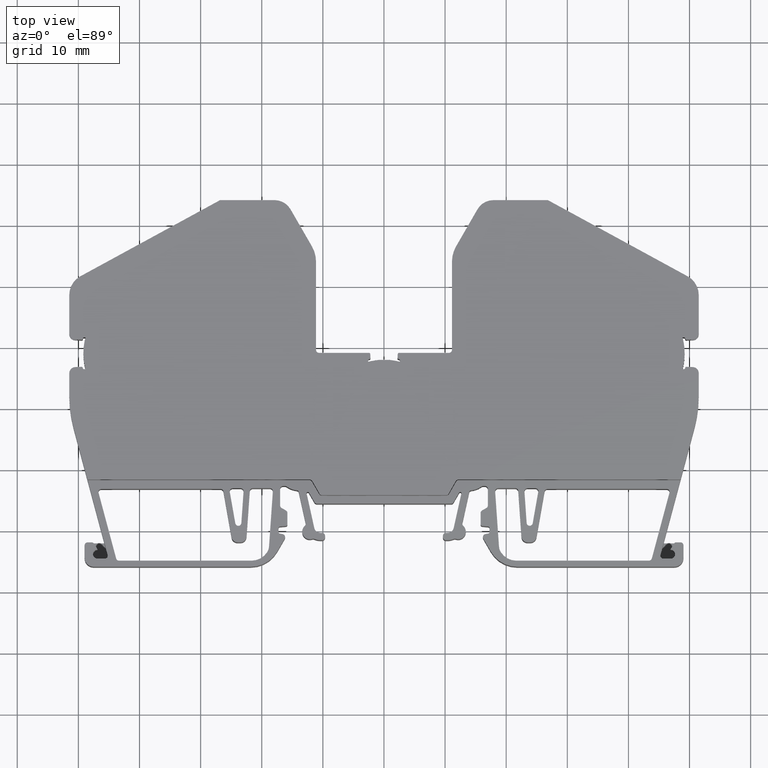
[diagram: clean part render]
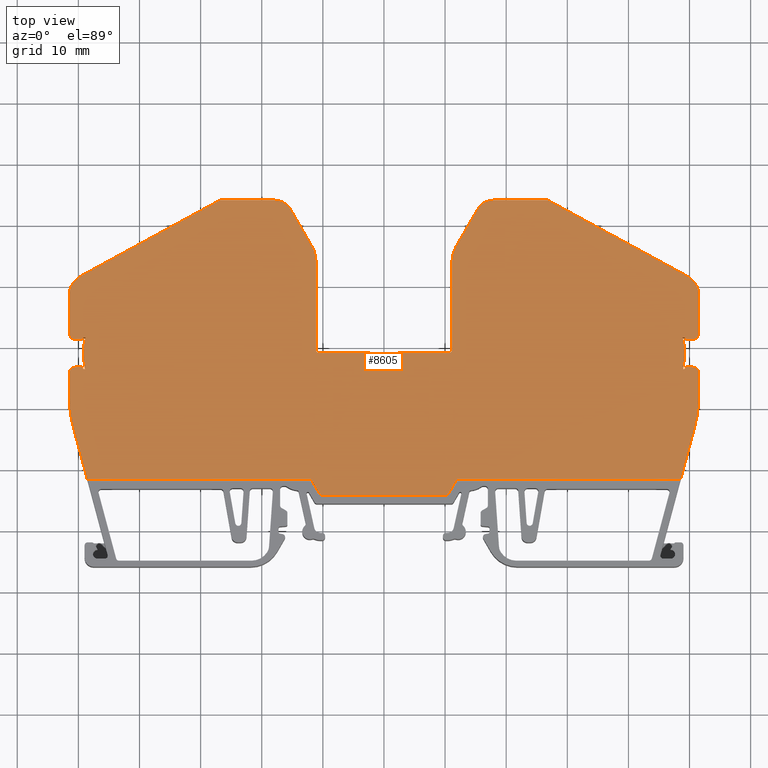
[diagram: same view with one face highlighted and labeled with its STEP entity id]
A machine part, top view. The second image highlights one B-rep face of the part: STEP entity #8605.
In plain terms, the highlighted planar face has unit normal (0, 0, 1).
Its self-contained STEP definition (entity closure, byte-faithful):
#4 = CARTESIAN_POINT ( 'NONE',  ( 1298.507053994932000, 431.6199358778930000, 10.60000000000000000 ) ) ;
#5 = DIRECTION ( 'NONE',  ( -1.000000000000000000, 0.0000000000000000000, 0.0000000000000000000 ) ) ;
#6 = LINE ( 'NONE', #4, #11837 ) ;
#20 = LINE ( 'NONE', #28, #11854 ) ;
#28 = CARTESIAN_POINT ( 'NONE',  ( 1298.507068478170600, 426.4082234672580400, 10.60000000000000000 ) ) ;
#48 = CARTESIAN_POINT ( 'NONE',  ( 1298.266889815361500, 427.5719810963045100, 10.60000000000000000 ) ) ;
#52 = DIRECTION ( 'NONE',  ( -0.9999999999944205700, 3.340482959311863300E-006, 0.0000000000000000000 ) ) ;
#61 = DIRECTION ( 'NONE',  ( -0.9990477948722859000, -0.04362915952459974600, 0.0000000000000000000 ) ) ;
#73 = LINE ( 'NONE', #48, #11850 ) ;
#79 = CARTESIAN_POINT ( 'NONE',  ( 1279.507057439684100, 425.7517721646530000, 10.60000000000000000 ) ) ;
#86 = CARTESIAN_POINT ( 'NONE',  ( 1280.523908026020100, 426.5969413982720100, 10.60000000000000000 ) ) ;
#93 = DIRECTION ( 'NONE',  ( 1.000000000000000000, 0.0000000000000000000, 0.0000000000000000000 ) ) ;
#94 = DIRECTION ( 'NONE',  ( 1.000000000000000000, 0.0000000000000000000, 0.0000000000000000000 ) ) ;
#98 = DIRECTION ( 'NONE',  ( 0.0000000000000000000, 0.0000000000000000000, 1.000000000000000000 ) ) ;
#102 = DIRECTION ( 'NONE',  ( 0.0000000000000000000, 0.0000000000000000000, 1.000000000000000000 ) ) ;
#115 = DIRECTION ( 'NONE',  ( 0.0000000000000000000, 0.0000000000000000000, 1.000000000000000000 ) ) ;
#118 = CARTESIAN_POINT ( 'NONE',  ( 1280.923749281592100, 431.4199358778929500, 10.60000000000000000 ) ) ;
#122 = DIRECTION ( 'NONE',  ( 1.000000000000000000, 0.0000000000000000000, 0.0000000000000000000 ) ) ;
#176 = DIRECTION ( 'NONE',  ( -0.0000000000000000000, -0.0000000000000000000, -1.000000000000000000 ) ) ;
#177 = LINE ( 'NONE', #189, #11370 ) ;
#186 = DIRECTION ( 'NONE',  ( -0.0000000000000000000, -0.0000000000000000000, -1.000000000000000000 ) ) ;
#189 = CARTESIAN_POINT ( 'NONE',  ( 1334.272179843406100, 428.8838811801180100, 10.60000000000000000 ) ) ;
#194 = CARTESIAN_POINT ( 'NONE',  ( 1280.923747103711800, 426.6082822040444900, 10.60000000000000000 ) ) ;
#202 = DIRECTION ( 'NONE',  ( 0.9990478125527956200, -0.04362875466334083900, 0.0000000000000000000 ) ) ;
#203 = CARTESIAN_POINT ( 'NONE',  ( 1290.820816291698100, 429.0141127513439900, 10.60000000000000000 ) ) ;
#209 = DIRECTION ( 'NONE',  ( 1.000000000000000000, 0.0000000000000000000, 0.0000000000000000000 ) ) ;
#212 = DIRECTION ( 'NONE',  ( 1.000000000000000000, 2.220446049250360400E-014, 0.0000000000000000000 ) ) ;
#216 = CARTESIAN_POINT ( 'NONE',  ( 1312.111076361960200, 451.0739963311459600, 10.59999999999999800 ) ) ;
#232 = DIRECTION ( 'NONE',  ( 0.0000000000000000000, 0.0000000000000000000, 1.000000000000000000 ) ) ;
#234 = DIRECTION ( 'NONE',  ( 1.000000000000000000, 0.0000000000000000000, 0.0000000000000000000 ) ) ;
#236 = CARTESIAN_POINT ( 'NONE',  ( 1313.885295473820000, 444.0009586856450000, 10.59999999999999800 ) ) ;
#237 = DIRECTION ( 'NONE',  ( -7.154618086961583000E-007, -0.9999999999997439800, 0.0000000000000000000 ) ) ;
#240 = LINE ( 'NONE', #245, #11358 ) ;
#245 = CARTESIAN_POINT ( 'NONE',  ( 1278.507047723606300, 422.0725657437892000, 10.60000000000000000 ) ) ;
#260 = DIRECTION ( 'NONE',  ( -1.000000000000000000, 1.974952676291775800E-013, 0.0000000000000000000 ) ) ;
#262 = DIRECTION ( 'NONE',  ( 0.0000000000000000000, 0.0000000000000000000, 1.000000000000000000 ) ) ;
#268 = CARTESIAN_POINT ( 'NONE',  ( 1298.507053994938100, 454.0739963311481200, 10.60000000000000000 ) ) ;
#278 = CARTESIAN_POINT ( 'NONE',  ( 1282.007059505069900, 438.5395016427154900, 10.59999999999999800 ) ) ;
#280 = DIRECTION ( 'NONE',  ( 0.0000000000000000000, 0.0000000000000000000, 1.000000000000000000 ) ) ;
#282 = DIRECTION ( 'NONE',  ( 1.000000000000000000, 0.0000000000000000000, 0.0000000000000000000 ) ) ;
#285 = LINE ( 'NONE', #296, #11367 ) ;
#287 = DIRECTION ( 'NONE',  ( 1.000000000000000000, 0.0000000000000000000, 0.0000000000000000000 ) ) ;
#293 = LINE ( 'NONE', #268, #11378 ) ;
#296 = CARTESIAN_POINT ( 'NONE',  ( 1323.866140995009300, 436.7136271404479500, 10.60000000000000000 ) ) ;
#303 = CARTESIAN_POINT ( 'NONE',  ( 1286.130197895776500, 444.7738451969769400, 10.60000000000000000 ) ) ;
#304 = DIRECTION ( 'NONE',  ( -0.8779877064647014800, -0.4786831805034027500, 0.0000000000000000000 ) ) ;
#314 = DIRECTION ( 'NONE',  ( -0.5000000000000405200, 0.8660254037844152800, 0.0000000000000000000 ) ) ;
#337 = LINE ( 'NONE', #303, #11393 ) ;
#348 = DIRECTION ( 'NONE',  ( 1.000000000000000000, 0.0000000000000000000, 0.0000000000000000000 ) ) ;
#359 = DIRECTION ( 'NONE',  ( 0.0000000000000000000, 0.0000000000000000000, 1.000000000000000000 ) ) ;
#370 = CARTESIAN_POINT ( 'NONE',  ( 1280.523910086062200, 431.4312768531229900, 10.60000000000000000 ) ) ;
#371 = CARTESIAN_POINT ( 'NONE',  ( 1279.507059505069900, 432.2764455366610200, 10.60000000000000000 ) ) ;
#375 = DIRECTION ( 'NONE',  ( 1.000000000000000000, 0.0000000000000000000, 0.0000000000000000000 ) ) ;
#376 = DIRECTION ( 'NONE',  ( 0.0000000000000000000, 0.0000000000000000000, 1.000000000000000000 ) ) ;
#414 = CARTESIAN_POINT ( 'NONE',  ( 1278.507057439682100, 422.0725514345485300, 10.60000000000000000 ) ) ;
#415 = DIRECTION ( 'NONE',  ( 0.0000000000000000000, 1.000000000000000000, 0.0000000000000000000 ) ) ;
#416 = DIRECTION ( 'NONE',  ( 1.000000000000000000, 0.0000000000000000000, 0.0000000000000000000 ) ) ;
#420 = LINE ( 'NONE', #414, #8518 ) ;
#421 = CARTESIAN_POINT ( 'NONE',  ( 1319.808806512085800, 406.2015322684314900, 10.59999999999999800 ) ) ;
#422 = DIRECTION ( 'NONE',  ( 0.0000000000000000000, 0.0000000000000000000, 1.000000000000000000 ) ) ;
#430 = LINE ( 'NONE', #435, #8516 ) ;
#435 = CARTESIAN_POINT ( 'NONE',  ( 1298.507053994931800, 408.3426663702592200, 10.60000000000000000 ) ) ;
#443 = DIRECTION ( 'NONE',  ( 1.000000000000000000, -1.223923846071980600E-014, 0.0000000000000000000 ) ) ;
#471 = DIRECTION ( 'NONE',  ( 1.000000000000000000, 6.476300976983189500E-013, 0.0000000000000000000 ) ) ;
#472 = CARTESIAN_POINT ( 'NONE',  ( 1317.764323151790000, 407.7426663702589700, 10.59999999999999800 ) ) ;
#480 = LINE ( 'NONE', #488, #8502 ) ;
#481 = DIRECTION ( 'NONE',  ( 0.5000027472572490300, -0.8660238176489164500, 0.0000000000000000000 ) ) ;
#488 = CARTESIAN_POINT ( 'NONE',  ( 1307.264522269901400, 427.1287151419051000, 10.60000000000000000 ) ) ;
#489 = DIRECTION ( 'NONE',  ( -0.0000000000000000000, -0.0000000000000000000, -1.000000000000000000 ) ) ;
#1505 = EDGE_CURVE ( 'NONE', #6480, #5729, #6, .T. ) ;
#1510 = EDGE_CURVE ( 'NONE', #5655, #5786, #20, .T. ) ;
#1522 = EDGE_CURVE ( 'NONE', #5733, #5811, #73, .T. ) ;
#1524 = EDGE_CURVE ( 'NONE', #5811, #5790, #11870, .T. ) ;
#1530 = EDGE_CURVE ( 'NONE', #5729, #5806, #11871, .T. ) ;
#1531 = EDGE_CURVE ( 'NONE', #5747, #5733, #11830, .T. ) ;
#1553 = EDGE_CURVE ( 'NONE', #5786, #5747, #11343, .T. ) ;
#1554 = EDGE_CURVE ( 'NONE', #5773, #5782, #177, .T. ) ;
#1559 = EDGE_CURVE ( 'NONE', #5655, #4959, #11365, .T. ) ;
#1565 = EDGE_CURVE ( 'NONE', #5721, #5743, #11356, .T. ) ;
#1567 = EDGE_CURVE ( 'NONE', #5775, #5815, #240, .T. ) ;
#1576 = EDGE_CURVE ( 'NONE', #5725, #5714, #11382, .T. ) ;
#1581 = EDGE_CURVE ( 'NONE', #5743, #5792, #293, .T. ) ;
#1589 = EDGE_CURVE ( 'NONE', #5731, #5775, #11384, .T. ) ;
#1591 = EDGE_CURVE ( 'NONE', #5714, #5721, #285, .T. ) ;
#1603 = EDGE_CURVE ( 'NONE', #5792, #5731, #337, .T. ) ;
#1608 = EDGE_CURVE ( 'NONE', #5782, #5806, #11441, .T. ) ;
#1609 = EDGE_CURVE ( 'NONE', #5815, #5773, #11446, .T. ) ;
#1624 = EDGE_CURVE ( 'NONE', #5788, #5725, #15753, .T. ) ;
#1824 = CIRCLE ( 'NONE', #1825, 9.999999999999120700 ) ;
#1825 = AXIS2_PLACEMENT_3D ( 'NONE', #15337, #15326, #15332 ) ;
#1826 = CIRCLE ( 'NONE', #1834, 0.4999999940318300400 ) ;
#1834 = AXIS2_PLACEMENT_3D ( 'NONE', #15427, #15408, #15422 ) ;
#1888 = VECTOR ( 'NONE', #15420, 1000.000000000000100 ) ;
#1889 = VECTOR ( 'NONE', #15339, 1000.000000000000000 ) ;
#1900 = CIRCLE ( 'NONE', #1903, 0.2000000122019951500 ) ;
#1903 = AXIS2_PLACEMENT_3D ( 'NONE', #15345, #15353, #15347 ) ;
#1911 = VECTOR ( 'NONE', #15393, 1000.000000000000100 ) ;
#1912 = CIRCLE ( 'NONE', #1926, 0.2000000122019951500 ) ;
#1915 = VECTOR ( 'NONE', #15358, 1000.000000000000000 ) ;
#1924 = VECTOR ( 'NONE', #15431, 1000.000000000000000 ) ;
#1926 = AXIS2_PLACEMENT_3D ( 'NONE', #15357, #15344, #15350 ) ;
#2086 = CIRCLE ( 'NONE', #2093, 19.99999655525330800 ) ;
#2093 = AXIS2_PLACEMENT_3D ( 'NONE', #3890, #3831, #3892 ) ;
#2103 = CIRCLE ( 'NONE', #2104, 19.99999655525353100 ) ;
#2104 = AXIS2_PLACEMENT_3D ( 'NONE', #3903, #3989, #3899 ) ;
#2110 = VECTOR ( 'NONE', #3984, 1000.000000000000000 ) ;
#2134 = VECTOR ( 'NONE', #4130, 1000.000000000000100 ) ;
#2146 = VECTOR ( 'NONE', #4034, 1000.000000000000000 ) ;
#2218 = ORIENTED_EDGE ( 'NONE', *, *, #12845, .T. ) ;
#2235 = ORIENTED_EDGE ( 'NONE', *, *, #12847, .F. ) ;
#2263 = ORIENTED_EDGE ( 'NONE', *, *, #12872, .T. ) ;
#2272 = ORIENTED_EDGE ( 'NONE', *, *, #11138, .F. ) ;
#2275 = ORIENTED_EDGE ( 'NONE', *, *, #1553, .T. ) ;
#2276 = ORIENTED_EDGE ( 'NONE', *, *, #12873, .T. ) ;
#2277 = ORIENTED_EDGE ( 'NONE', *, *, #1531, .T. ) ;
#2279 = ORIENTED_EDGE ( 'NONE', *, *, #1524, .T. ) ;
#2282 = ORIENTED_EDGE ( 'NONE', *, *, #11125, .T. ) ;
#2283 = ORIENTED_EDGE ( 'NONE', *, *, #11199, .T. ) ;
#2285 = ORIENTED_EDGE ( 'NONE', *, *, #11158, .T. ) ;
#2288 = ORIENTED_EDGE ( 'NONE', *, *, #11190, .F. ) ;
#2289 = ORIENTED_EDGE ( 'NONE', *, *, #8791, .T. ) ;
#2291 = ORIENTED_EDGE ( 'NONE', *, *, #1505, .F. ) ;
#2292 = ORIENTED_EDGE ( 'NONE', *, *, #11122, .T. ) ;
#2293 = ORIENTED_EDGE ( 'NONE', *, *, #1589, .T. ) ;
#2294 = ORIENTED_EDGE ( 'NONE', *, *, #11220, .T. ) ;
#2295 = ORIENTED_EDGE ( 'NONE', *, *, #11109, .F. ) ;
#2298 = ORIENTED_EDGE ( 'NONE', *, *, #11167, .T. ) ;
#2299 = ORIENTED_EDGE ( 'NONE', *, *, #12860, .T. ) ;
#2300 = ORIENTED_EDGE ( 'NONE', *, *, #11093, .T. ) ;
#2302 = ORIENTED_EDGE ( 'NONE', *, *, #8797, .T. ) ;
#2303 = ORIENTED_EDGE ( 'NONE', *, *, #11177, .F. ) ;
#2305 = ORIENTED_EDGE ( 'NONE', *, *, #11201, .T. ) ;
#2306 = ORIENTED_EDGE ( 'NONE', *, *, #1554, .T. ) ;
#2307 = ORIENTED_EDGE ( 'NONE', *, *, #1522, .T. ) ;
#2308 = ORIENTED_EDGE ( 'NONE', *, *, #8618, .T. ) ;
#2309 = ORIENTED_EDGE ( 'NONE', *, *, #11185, .T. ) ;
#2310 = ORIENTED_EDGE ( 'NONE', *, *, #11106, .F. ) ;
#2312 = ORIENTED_EDGE ( 'NONE', *, *, #1559, .F. ) ;
#2313 = ORIENTED_EDGE ( 'NONE', *, *, #1510, .T. ) ;
#2314 = ORIENTED_EDGE ( 'NONE', *, *, #1565, .T. ) ;
#2315 = ORIENTED_EDGE ( 'NONE', *, *, #11178, .T. ) ;
#2318 = ORIENTED_EDGE ( 'NONE', *, *, #1624, .T. ) ;
#2320 = ORIENTED_EDGE ( 'NONE', *, *, #8795, .T. ) ;
#2325 = ORIENTED_EDGE ( 'NONE', *, *, #11214, .F. ) ;
#2326 = ORIENTED_EDGE ( 'NONE', *, *, #13537, .F. ) ;
#2327 = ORIENTED_EDGE ( 'NONE', *, *, #11171, .T. ) ;
#2328 = ORIENTED_EDGE ( 'NONE', *, *, #11096, .T. ) ;
#2329 = ORIENTED_EDGE ( 'NONE', *, *, #11123, .T. ) ;
#2331 = ORIENTED_EDGE ( 'NONE', *, *, #1576, .T. ) ;
#2332 = ORIENTED_EDGE ( 'NONE', *, *, #11218, .T. ) ;
#2339 = ORIENTED_EDGE ( 'NONE', *, *, #11210, .F. ) ;
#2341 = ORIENTED_EDGE ( 'NONE', *, *, #11149, .T. ) ;
#2342 = ORIENTED_EDGE ( 'NONE', *, *, #11137, .T. ) ;
#2344 = ORIENTED_EDGE ( 'NONE', *, *, #11211, .F. ) ;
#2345 = ORIENTED_EDGE ( 'NONE', *, *, #11191, .T. ) ;
#2346 = ORIENTED_EDGE ( 'NONE', *, *, #11107, .T. ) ;
#2348 = ORIENTED_EDGE ( 'NONE', *, *, #11144, .F. ) ;
#2349 = ORIENTED_EDGE ( 'NONE', *, *, #13488, .F. ) ;
#2351 = ORIENTED_EDGE ( 'NONE', *, *, #1603, .T. ) ;
#2353 = ORIENTED_EDGE ( 'NONE', *, *, #8819, .T. ) ;
#2357 = ORIENTED_EDGE ( 'NONE', *, *, #1567, .T. ) ;
#2358 = ORIENTED_EDGE ( 'NONE', *, *, #8822, .T. ) ;
#2361 = ORIENTED_EDGE ( 'NONE', *, *, #11152, .T. ) ;
#2362 = ORIENTED_EDGE ( 'NONE', *, *, #11103, .F. ) ;
#2366 = ORIENTED_EDGE ( 'NONE', *, *, #11157, .F. ) ;
#2367 = ORIENTED_EDGE ( 'NONE', *, *, #11174, .T. ) ;
#2371 = ORIENTED_EDGE ( 'NONE', *, *, #11134, .T. ) ;
#2372 = ORIENTED_EDGE ( 'NONE', *, *, #11136, .T. ) ;
#2373 = ORIENTED_EDGE ( 'NONE', *, *, #1530, .F. ) ;
#2378 = ORIENTED_EDGE ( 'NONE', *, *, #11188, .F. ) ;
#2379 = ORIENTED_EDGE ( 'NONE', *, *, #11162, .F. ) ;
#2382 = ORIENTED_EDGE ( 'NONE', *, *, #1591, .T. ) ;
#2383 = ORIENTED_EDGE ( 'NONE', *, *, #11170, .T. ) ;
#2384 = ORIENTED_EDGE ( 'NONE', *, *, #11130, .F. ) ;
#2385 = ORIENTED_EDGE ( 'NONE', *, *, #11209, .T. ) ;
#2391 = ORIENTED_EDGE ( 'NONE', *, *, #11180, .T. ) ;
#2393 = ORIENTED_EDGE ( 'NONE', *, *, #1609, .T. ) ;
#2395 = ORIENTED_EDGE ( 'NONE', *, *, #1608, .T. ) ;
#2397 = ORIENTED_EDGE ( 'NONE', *, *, #1581, .T. ) ;
#3831 = DIRECTION ( 'NONE',  ( 0.0000000000000000000, 0.0000000000000000000, 1.000000000000000000 ) ) ;
#3890 = CARTESIAN_POINT ( 'NONE',  ( 1361.507065015202200, 422.0725514345620000, 10.59999999999999800 ) ) ;
#3892 = DIRECTION ( 'NONE',  ( 1.000000000000000000, 0.0000000000000000000, 0.0000000000000000000 ) ) ;
#3899 = DIRECTION ( 'NONE',  ( 1.000000000000000000, 0.0000000000000000000, 0.0000000000000000000 ) ) ;
#3903 = CARTESIAN_POINT ( 'NONE',  ( 1298.507053994932000, 422.0725514345485300, 10.59999999999999800 ) ) ;
#3969 = LINE ( 'NONE', #3982, #2110 ) ;
#3982 = CARTESIAN_POINT ( 'NONE',  ( 1279.188440239206800, 416.8965467236485600, 10.60000000000000000 ) ) ;
#3984 = DIRECTION ( 'NONE',  ( 0.2588002801200687800, -0.9659308541556035400, 0.0000000000000000000 ) ) ;
#3989 = DIRECTION ( 'NONE',  ( 0.0000000000000000000, 0.0000000000000000000, 1.000000000000000000 ) ) ;
#4017 = LINE ( 'NONE', #4067, #2146 ) ;
#4034 = DIRECTION ( 'NONE',  ( 1.000000000000000000, 3.059809615179970300E-015, 0.0000000000000000000 ) ) ;
#4044 = LINE ( 'NONE', #4050, #2134 ) ;
#4050 = CARTESIAN_POINT ( 'NONE',  ( 1376.606090178437200, 401.1476039039647500, 10.60000000000000000 ) ) ;
#4067 = CARTESIAN_POINT ( 'NONE',  ( 1298.507053994932000, 408.3426663702727000, 10.60000000000000000 ) ) ;
#4130 = DIRECTION ( 'NONE',  ( 0.2588002801198227000, 0.9659308541556694800, 0.0000000000000000000 ) ) ;
#4707 = CIRCLE ( 'NONE', #4722, 9.999999999999786800 ) ;
#4722 = AXIS2_PLACEMENT_3D ( 'NONE', #9783, #9813, #9819 ) ;
#4756 = AXIS2_PLACEMENT_3D ( 'NONE', #9922, #9948, #9929 ) ;
#4778 = CIRCLE ( 'NONE', #4756, 9.999999999999786800 ) ;
#4959 = VERTEX_POINT ( 'NONE', #7220 ) ;
#5178 = EDGE_LOOP ( 'NONE', ( #2235, #2320, #2302, #2299, #2276, #2263, #2218, #2308, #2294, #2305, #2367, #2353, #2358, #2289, #2309, #2345, #2332, #2366, #2298, #2385, #2349, #2325, #2288, #2379, #2378, #2303, #2339, #2344, #2327, #2283, #2383, #2391, #2342, #2315, #2372, #2328, #2361, #2346, #2362, #2329, #2371, #2285, #2282, #2300, #2348, #2272, #2384, #2295, #2310, #2341, #2292, #2318, #2331, #2382, #2314, #2397, #2351, #2293, #2357, #2393, #2306, #2395, #2373, #2291, #2326, #2312, #2313, #2275, #2277, #2307, #2279 ) ) ;
#5655 = VERTEX_POINT ( 'NONE', #7318 ) ;
#5714 = VERTEX_POINT ( 'NONE', #7348 ) ;
#5719 = VERTEX_POINT ( 'NONE', #7390 ) ;
#5721 = VERTEX_POINT ( 'NONE', #7338 ) ;
#5725 = VERTEX_POINT ( 'NONE', #7363 ) ;
#5729 = VERTEX_POINT ( 'NONE', #7354 ) ;
#5731 = VERTEX_POINT ( 'NONE', #7396 ) ;
#5733 = VERTEX_POINT ( 'NONE', #7364 ) ;
#5735 = VERTEX_POINT ( 'NONE', #7351 ) ;
#5743 = VERTEX_POINT ( 'NONE', #7340 ) ;
#5747 = VERTEX_POINT ( 'NONE', #7368 ) ;
#5764 = VERTEX_POINT ( 'NONE', #7407 ) ;
#5771 = VERTEX_POINT ( 'NONE', #7404 ) ;
#5773 = VERTEX_POINT ( 'NONE', #7408 ) ;
#5775 = VERTEX_POINT ( 'NONE', #7428 ) ;
#5780 = VERTEX_POINT ( 'NONE', #7409 ) ;
#5782 = VERTEX_POINT ( 'NONE', #7399 ) ;
#5784 = VERTEX_POINT ( 'NONE', #7434 ) ;
#5786 = VERTEX_POINT ( 'NONE', #7443 ) ;
#5788 = VERTEX_POINT ( 'NONE', #7430 ) ;
#5790 = VERTEX_POINT ( 'NONE', #7451 ) ;
#5792 = VERTEX_POINT ( 'NONE', #7444 ) ;
#5794 = VERTEX_POINT ( 'NONE', #7410 ) ;
#5801 = VERTEX_POINT ( 'NONE', #7418 ) ;
#5806 = VERTEX_POINT ( 'NONE', #7413 ) ;
#5809 = VERTEX_POINT ( 'NONE', #7414 ) ;
#5811 = VERTEX_POINT ( 'NONE', #7431 ) ;
#5813 = VERTEX_POINT ( 'NONE', #7435 ) ;
#5815 = VERTEX_POINT ( 'NONE', #7446 ) ;
#5826 = VERTEX_POINT ( 'NONE', #7447 ) ;
#5827 = VERTEX_POINT ( 'NONE', #7416 ) ;
#5829 = VERTEX_POINT ( 'NONE', #7403 ) ;
#5831 = VERTEX_POINT ( 'NONE', #7449 ) ;
#5834 = VERTEX_POINT ( 'NONE', #7438 ) ;
#5837 = VERTEX_POINT ( 'NONE', #7419 ) ;
#5840 = VERTEX_POINT ( 'NONE', #7400 ) ;
#5842 = VERTEX_POINT ( 'NONE', #7440 ) ;
#5844 = VERTEX_POINT ( 'NONE', #7441 ) ;
#5847 = VERTEX_POINT ( 'NONE', #7454 ) ;
#5851 = VERTEX_POINT ( 'NONE', #7426 ) ;
#5852 = VERTEX_POINT ( 'NONE', #7448 ) ;
#5854 = VERTEX_POINT ( 'NONE', #7427 ) ;
#5855 = VERTEX_POINT ( 'NONE', #7397 ) ;
#5857 = VERTEX_POINT ( 'NONE', #7486 ) ;
#5861 = VERTEX_POINT ( 'NONE', #7483 ) ;
#5865 = VERTEX_POINT ( 'NONE', #7469 ) ;
#5869 = VERTEX_POINT ( 'NONE', #7472 ) ;
#5870 = VERTEX_POINT ( 'NONE', #7496 ) ;
#5872 = VERTEX_POINT ( 'NONE', #7474 ) ;
#5883 = VERTEX_POINT ( 'NONE', #7467 ) ;
#5884 = VERTEX_POINT ( 'NONE', #7465 ) ;
#5886 = VERTEX_POINT ( 'NONE', #7501 ) ;
#5894 = VERTEX_POINT ( 'NONE', #7471 ) ;
#5898 = VERTEX_POINT ( 'NONE', #7503 ) ;
#5904 = VERTEX_POINT ( 'NONE', #7495 ) ;
#5910 = VERTEX_POINT ( 'NONE', #7506 ) ;
#5914 = VERTEX_POINT ( 'NONE', #7485 ) ;
#5920 = VERTEX_POINT ( 'NONE', #7497 ) ;
#5921 = VERTEX_POINT ( 'NONE', #7504 ) ;
#5955 = VERTEX_POINT ( 'NONE', #7531 ) ;
#5962 = VERTEX_POINT ( 'NONE', #7524 ) ;
#5976 = VERTEX_POINT ( 'NONE', #7540 ) ;
#5985 = VERTEX_POINT ( 'NONE', #7532 ) ;
#6013 = VERTEX_POINT ( 'NONE', #7516 ) ;
#6037 = VERTEX_POINT ( 'NONE', #7518 ) ;
#6038 = VERTEX_POINT ( 'NONE', #7538 ) ;
#6095 = VERTEX_POINT ( 'NONE', #7621 ) ;
#6444 = VERTEX_POINT ( 'NONE', #7797 ) ;
#6480 = VERTEX_POINT ( 'NONE', #7819 ) ;
#6568 = VERTEX_POINT ( 'NONE', #7874 ) ;
#7220 = CARTESIAN_POINT ( 'NONE',  ( 1280.820816291698300, 429.0141127513439900, 10.60000000000000000 ) ) ;
#7318 = CARTESIAN_POINT ( 'NONE',  ( 1281.166302169484000, 426.4082813937919800, 10.59999999999999800 ) ) ;
#7338 = CARTESIAN_POINT ( 'NONE',  ( 1314.709152573312400, 452.5739963311461300, 10.59999999999999800 ) ) ;
#7340 = CARTESIAN_POINT ( 'NONE',  ( 1312.111076361960200, 454.0739963311454500, 10.59999999999999800 ) ) ;
#7348 = CARTESIAN_POINT ( 'NONE',  ( 1318.215422492741000, 446.5009586856455100, 10.59999999999999800 ) ) ;
#7351 = CARTESIAN_POINT ( 'NONE',  ( 1332.612890107524000, 427.8642971006304900, 10.60000000000000000 ) ) ;
#7354 = CARTESIAN_POINT ( 'NONE',  ( 1280.923749281592100, 431.6199358778930000, 10.60000000000000000 ) ) ;
#7363 = CARTESIAN_POINT ( 'NONE',  ( 1318.885295473819700, 444.0009586856450000, 10.59999999999999800 ) ) ;
#7364 = CARTESIAN_POINT ( 'NONE',  ( 1280.515188568948100, 426.7967511128259700, 10.60000000000000000 ) ) ;
#7368 = CARTESIAN_POINT ( 'NONE',  ( 1280.723827503592200, 426.6026117994205200, 10.60000000000000000 ) ) ;
#7390 = CARTESIAN_POINT ( 'NONE',  ( 1327.563249270522000, 429.0739960545454900, 10.60000000000000000 ) ) ;
#7396 = CARTESIAN_POINT ( 'NONE',  ( 1280.331668373308000, 441.6124586153419500, 10.59999999999999800 ) ) ;
#7397 = CARTESIAN_POINT ( 'NONE',  ( 1332.224421523400000, 428.2728621193469400, 10.60000000000000000 ) ) ;
#7399 = CARTESIAN_POINT ( 'NONE',  ( 1280.515184262873800, 431.2314672937674800, 10.60000000000000000 ) ) ;
#7400 = CARTESIAN_POINT ( 'NONE',  ( 1356.825836149942200, 454.0739963311599500, 10.60000000000000000 ) ) ;
#7403 = CARTESIAN_POINT ( 'NONE',  ( 1327.595558414996000, 428.0642166983820400, 10.60000000000000000 ) ) ;
#7404 = CARTESIAN_POINT ( 'NONE',  ( 1327.789697486736000, 428.2728621193334700, 10.60000000000000000 ) ) ;
#7407 = CARTESIAN_POINT ( 'NONE',  ( 1379.682450636825900, 441.6124586153554800, 10.59999999999999800 ) ) ;
#7408 = CARTESIAN_POINT ( 'NONE',  ( 1279.463431868296100, 431.2773976752899900, 10.60000000000000000 ) ) ;
#7409 = CARTESIAN_POINT ( 'NONE',  ( 1345.304966436822000, 452.5739963311589800, 10.59999999999999800 ) ) ;
#7410 = CARTESIAN_POINT ( 'NONE',  ( 1381.507061570451900, 422.0725391409830500, 10.60000000000000000 ) ) ;
#7413 = CARTESIAN_POINT ( 'NONE',  ( 1280.723829683826100, 431.4256063655080300, 10.60000000000000000 ) ) ;
#7414 = CARTESIAN_POINT ( 'NONE',  ( 1332.418560595140000, 428.0642166983955100, 10.60000000000000000 ) ) ;
#7416 = CARTESIAN_POINT ( 'NONE',  ( 1327.401228902610000, 427.8642971006175300, 10.60000000000000000 ) ) ;
#7418 = CARTESIAN_POINT ( 'NONE',  ( 1319.385295467850000, 429.0739963371145200, 10.60000000000000000 ) ) ;
#7419 = CARTESIAN_POINT ( 'NONE',  ( 1379.290289326308100, 431.4256063655215000, 10.60000000000000000 ) ) ;
#7426 = CARTESIAN_POINT ( 'NONE',  ( 1381.507059505064000, 436.0945160586838900, 10.59999999999999800 ) ) ;
#7427 = CARTESIAN_POINT ( 'NONE',  ( 1341.730181567756300, 408.0426680186269600, 10.59999999999999800 ) ) ;
#7428 = CARTESIAN_POINT ( 'NONE',  ( 1278.507059505069900, 438.5395016427154900, 10.59999999999999800 ) ) ;
#7430 = CARTESIAN_POINT ( 'NONE',  ( 1318.885295473820200, 429.5739963311465300, 10.60000000000000000 ) ) ;
#7431 = CARTESIAN_POINT ( 'NONE',  ( 1279.463428280159900, 426.7508199595255300, 10.60000000000000000 ) ) ;
#7434 = CARTESIAN_POINT ( 'NONE',  ( 1327.763064485104000, 428.8827218661435300, 10.60000000000000000 ) ) ;
#7435 = CARTESIAN_POINT ( 'NONE',  ( 1332.612890107524000, 427.6217425929215200, 10.59999999999999800 ) ) ;
#7438 = CARTESIAN_POINT ( 'NONE',  ( 1341.128823536316100, 444.0009586856584700, 10.59999999999999800 ) ) ;
#7440 = CARTESIAN_POINT ( 'NONE',  ( 1381.507059505064000, 432.2764455366744900, 10.60000000000000000 ) ) ;
#7441 = CARTESIAN_POINT ( 'NONE',  ( 1319.462396985027700, 406.0015311695288500, 10.59999999999999800 ) ) ;
#7443 = CARTESIAN_POINT ( 'NONE',  ( 1280.923746435614000, 426.4082822040455200, 10.60000000000000000 ) ) ;
#7444 = CARTESIAN_POINT ( 'NONE',  ( 1303.188282860192000, 454.0739963311459600, 10.60000000000000000 ) ) ;
#7446 = CARTESIAN_POINT ( 'NONE',  ( 1278.507059505069900, 432.2764455366610200, 10.60000000000000000 ) ) ;
#7447 = CARTESIAN_POINT ( 'NONE',  ( 1342.249795858346000, 408.3426663702728100, 10.59999999999999800 ) ) ;
#7448 = CARTESIAN_POINT ( 'NONE',  ( 1379.090369728543900, 431.6199358779060200, 10.60000000000000000 ) ) ;
#7449 = CARTESIAN_POINT ( 'NONE',  ( 1341.128823536316100, 429.5739963311594900, 10.60000000000000000 ) ) ;
#7451 = CARTESIAN_POINT ( 'NONE',  ( 1278.507057439682100, 425.7517721646530000, 10.60000000000000000 ) ) ;
#7454 = CARTESIAN_POINT ( 'NONE',  ( 1319.808806512085800, 405.8015322684324200, 10.59999999999999800 ) ) ;
#7465 = CARTESIAN_POINT ( 'NONE',  ( 1380.550687141838100, 431.2773976753034600, 10.60000000000000000 ) ) ;
#7467 = CARTESIAN_POINT ( 'NONE',  ( 1379.090372574520000, 426.4082822040589900, 10.60000000000000000 ) ) ;
#7469 = CARTESIAN_POINT ( 'NONE',  ( 1379.498934747259900, 431.2314672937809500, 10.60000000000000000 ) ) ;
#7471 = CARTESIAN_POINT ( 'NONE',  ( 1278.507057439682100, 422.0725391409695200, 10.60000000000000000 ) ) ;
#7472 = CARTESIAN_POINT ( 'NONE',  ( 1327.401228902610000, 427.6217425929080500, 10.59999999999999800 ) ) ;
#7474 = CARTESIAN_POINT ( 'NONE',  ( 1378.847819062260000, 431.6199358779060200, 10.59999999999999800 ) ) ;
#7483 = CARTESIAN_POINT ( 'NONE',  ( 1379.498930441186100, 426.7967511128395000, 10.60000000000000000 ) ) ;
#7485 = CARTESIAN_POINT ( 'NONE',  ( 1381.507059505064000, 438.5395016427289600, 10.59999999999999800 ) ) ;
#7486 = CARTESIAN_POINT ( 'NONE',  ( 1380.550690729975900, 426.7508199595390000, 10.60000000000000000 ) ) ;
#7495 = CARTESIAN_POINT ( 'NONE',  ( 1347.903042648175900, 454.0739963311600000, 10.59999999999999800 ) ) ;
#7496 = CARTESIAN_POINT ( 'NONE',  ( 1341.798696517393900, 446.5009586856584200, 10.59999999999999800 ) ) ;
#7497 = CARTESIAN_POINT ( 'NONE',  ( 1379.290291506542000, 426.6026117994340400, 10.60000000000000000 ) ) ;
#7501 = CARTESIAN_POINT ( 'NONE',  ( 1381.507061570451900, 425.7517721646664800, 10.60000000000000000 ) ) ;
#7503 = CARTESIAN_POINT ( 'NONE',  ( 1340.628823542284200, 429.0739963371274800, 10.60000000000000000 ) ) ;
#7504 = CARTESIAN_POINT ( 'NONE',  ( 1332.450869739612000, 429.0739960545590200, 10.60000000000000000 ) ) ;
#7506 = CARTESIAN_POINT ( 'NONE',  ( 1332.251054525030200, 428.8827218661570000, 10.60000000000000000 ) ) ;
#7516 = CARTESIAN_POINT ( 'NONE',  ( 1318.283937442378400, 408.0426680186138200, 10.59999999999999800 ) ) ;
#7518 = CARTESIAN_POINT ( 'NONE',  ( 1378.533851543289800, 408.3426663702729200, 10.59999999999999800 ) ) ;
#7524 = CARTESIAN_POINT ( 'NONE',  ( 1340.205312498048000, 405.8015322684448700, 10.59999999999999800 ) ) ;
#7531 = CARTESIAN_POINT ( 'NONE',  ( 1340.551722025107700, 406.0015311695421500, 10.59999999999999800 ) ) ;
#7532 = CARTESIAN_POINT ( 'NONE',  ( 1317.764323151790000, 408.3426663702586600, 10.59999999999999800 ) ) ;
#7538 = CARTESIAN_POINT ( 'NONE',  ( 1281.480267466846300, 408.3426663702594500, 10.59999999999999800 ) ) ;
#7540 = CARTESIAN_POINT ( 'NONE',  ( 1380.825677838694900, 416.8965432442556700, 10.59999999999999800 ) ) ;
#7621 = CARTESIAN_POINT ( 'NONE',  ( 1279.188440239205600, 416.8965467236529300, 10.59999999999999800 ) ) ;
#7797 = CARTESIAN_POINT ( 'NONE',  ( 1379.193302718437700, 429.0141127513574600, 10.60000000000000000 ) ) ;
#7819 = CARTESIAN_POINT ( 'NONE',  ( 1281.166299947874000, 431.6199358778930000, 10.59999999999999800 ) ) ;
#7874 = CARTESIAN_POINT ( 'NONE',  ( 1378.847816840650000, 426.4082813938055100, 10.59999999999999800 ) ) ;
#7970 = FACE_OUTER_BOUND ( 'NONE', #5178, .T. ) ;
#7990 = DIRECTION ( 'NONE',  ( 1.000000000000000000, 0.0000000000000000000, -0.0000000000000000000 ) ) ;
#8010 = CARTESIAN_POINT ( 'NONE',  ( 1298.507053994932000, 422.0725514345485300, 10.60000000000000000 ) ) ;
#8014 = DIRECTION ( 'NONE',  ( 0.0000000000000000000, 0.0000000000000000000, 1.000000000000000000 ) ) ;
#8018 = PLANE ( 'NONE',  #11889 ) ;
#8033 = LINE ( 'NONE', #8055, #11502 ) ;
#8055 = CARTESIAN_POINT ( 'NONE',  ( 1298.507053994942000, 405.8015322684192400, 10.60000000000000000 ) ) ;
#8065 = DIRECTION ( 'NONE',  ( 1.000000000000000000, 6.178034285954756500E-013, 0.0000000000000000000 ) ) ;
#8502 = VECTOR ( 'NONE', #481, 1000.000000000000000 ) ;
#8516 = VECTOR ( 'NONE', #443, 1000.000000000000000 ) ;
#8518 = VECTOR ( 'NONE', #415, 1000.000000000000000 ) ;
#8523 = AXIS2_PLACEMENT_3D ( 'NONE', #421, #422, #416 ) ;
#8536 = CIRCLE ( 'NONE', #8550, 0.5999999999997118700 ) ;
#8544 = CIRCLE ( 'NONE', #8523, 0.3999999999986236800 ) ;
#8550 = AXIS2_PLACEMENT_3D ( 'NONE', #472, #489, #471 ) ;
#8605 = ADVANCED_FACE ( 'NONE', ( #7970 ), #8018, .T. ) ;
#8618 = EDGE_CURVE ( 'NONE', #5847, #5962, #8033, .T. ) ;
#8791 = EDGE_CURVE ( 'NONE', #5976, #5794, #2086, .T. ) ;
#8795 = EDGE_CURVE ( 'NONE', #5894, #6095, #2103, .T. ) ;
#8797 = EDGE_CURVE ( 'NONE', #6095, #6038, #3969, .T. ) ;
#8819 = EDGE_CURVE ( 'NONE', #5826, #6037, #4017, .T. ) ;
#8822 = EDGE_CURVE ( 'NONE', #6037, #5976, #4044, .T. ) ;
#9065 = LINE ( 'NONE', #9071, #12160 ) ;
#9066 = CARTESIAN_POINT ( 'NONE',  ( 1369.193302718438000, 429.0141127513574600, 10.60000000000000000 ) ) ;
#9069 = CARTESIAN_POINT ( 'NONE',  ( 1298.507039512396400, 426.4080130168077300, 10.60000000000000000 ) ) ;
#9070 = DIRECTION ( 'NONE',  ( 0.0000000000000000000, -1.000000000000000000, 0.0000000000000000000 ) ) ;
#9071 = CARTESIAN_POINT ( 'NONE',  ( 1381.507059505064000, 422.0725514345485300, 10.60000000000000000 ) ) ;
#9077 = LINE ( 'NONE', #9090, #12169 ) ;
#9080 = DIRECTION ( 'NONE',  ( -0.9999999999944205700, -3.340482959311863300E-006, 0.0000000000000000000 ) ) ;
#9085 = DIRECTION ( 'NONE',  ( 1.000000000000000000, -8.881784197001441700E-014, 0.0000000000000000000 ) ) ;
#9088 = LINE ( 'NONE', #9069, #12167 ) ;
#9089 = DIRECTION ( 'NONE',  ( -0.0000000000000000000, -0.0000000000000000000, -1.000000000000000000 ) ) ;
#9090 = CARTESIAN_POINT ( 'NONE',  ( 1298.867138919811900, 430.3180013604218700, 10.60000000000000000 ) ) ;
#9093 = DIRECTION ( 'NONE',  ( -0.9990477948722859000, 0.04362915952459974600, 0.0000000000000000000 ) ) ;
#9099 = DIRECTION ( 'NONE',  ( -0.0000000000000000000, -0.0000000000000000000, -1.000000000000000000 ) ) ;
#9103 = DIRECTION ( 'NONE',  ( 1.000000000000000000, 0.0000000000000000000, 0.0000000000000000000 ) ) ;
#9105 = CARTESIAN_POINT ( 'NONE',  ( 1380.507059505063800, 432.2764455366744900, 10.60000000000000000 ) ) ;
#9128 = CARTESIAN_POINT ( 'NONE',  ( 1340.205312498048000, 406.2015322684449600, 10.59999999999999800 ) ) ;
#9136 = DIRECTION ( 'NONE',  ( 0.0000000000000000000, 0.0000000000000000000, 1.000000000000000000 ) ) ;
#9145 = DIRECTION ( 'NONE',  ( 1.000000000000000000, 0.0000000000000000000, 0.0000000000000000000 ) ) ;
#9518 = DIRECTION ( 'NONE',  ( 0.0000000000000000000, 0.0000000000000000000, 1.000000000000000000 ) ) ;
#9523 = DIRECTION ( 'NONE',  ( 0.5000027472567443200, 0.8660238176492078800, 0.0000000000000000000 ) ) ;
#9524 = LINE ( 'NONE', #9534, #12177 ) ;
#9528 = DIRECTION ( 'NONE',  ( 1.000000000000000000, 0.0000000000000000000, 0.0000000000000000000 ) ) ;
#9529 = CARTESIAN_POINT ( 'NONE',  ( 1378.007059505064000, 438.5395016427289600, 10.59999999999999800 ) ) ;
#9534 = CARTESIAN_POINT ( 'NONE',  ( 1336.999420907465000, 399.8488102250694300, 10.60000000000000000 ) ) ;
#9783 = CARTESIAN_POINT ( 'NONE',  ( 1369.193302718438000, 429.0141127513574600, 10.60000000000000000 ) ) ;
#9813 = DIRECTION ( 'NONE',  ( -0.0000000000000000000, -0.0000000000000000000, -1.000000000000000000 ) ) ;
#9819 = DIRECTION ( 'NONE',  ( 1.000000000000000000, 0.0000000000000000000, 0.0000000000000000000 ) ) ;
#9922 = CARTESIAN_POINT ( 'NONE',  ( 1290.820816291698100, 429.0141127513439900, 10.60000000000000000 ) ) ;
#9929 = DIRECTION ( 'NONE',  ( 1.000000000000000000, -3.885780586188130600E-014, 0.0000000000000000000 ) ) ;
#9948 = DIRECTION ( 'NONE',  ( -0.0000000000000000000, -0.0000000000000000000, -1.000000000000000000 ) ) ;
#11093 = EDGE_CURVE ( 'NONE', #5813, #5869, #1824, .T. ) ;
#11096 = EDGE_CURVE ( 'NONE', #5834, #5831, #15341, .T. ) ;
#11103 = EDGE_CURVE ( 'NONE', #5910, #5921, #1900, .T. ) ;
#11106 = EDGE_CURVE ( 'NONE', #5719, #5784, #1912, .T. ) ;
#11107 = EDGE_CURVE ( 'NONE', #5898, #5921, #15364, .T. ) ;
#11109 = EDGE_CURVE ( 'NONE', #5784, #5771, #15379, .T. ) ;
#11122 = EDGE_CURVE ( 'NONE', #5801, #5788, #1826, .T. ) ;
#11123 = EDGE_CURVE ( 'NONE', #5910, #5855, #15429, .T. ) ;
#11125 = EDGE_CURVE ( 'NONE', #5735, #5813, #15423, .T. ) ;
#11130 = EDGE_CURVE ( 'NONE', #5771, #5829, #12060, .T. ) ;
#11134 = EDGE_CURVE ( 'NONE', #5855, #5809, #12066, .T. ) ;
#11136 = EDGE_CURVE ( 'NONE', #5870, #5834, #12071, .T. ) ;
#11137 = EDGE_CURVE ( 'NONE', #5904, #5780, #12090, .T. ) ;
#11138 = EDGE_CURVE ( 'NONE', #5829, #5827, #12095, .T. ) ;
#11144 = EDGE_CURVE ( 'NONE', #5827, #5869, #15501, .T. ) ;
#11149 = EDGE_CURVE ( 'NONE', #5719, #5801, #15498, .T. ) ;
#11152 = EDGE_CURVE ( 'NONE', #5831, #5898, #12088, .T. ) ;
#11157 = EDGE_CURVE ( 'NONE', #5920, #5861, #12073, .T. ) ;
#11158 = EDGE_CURVE ( 'NONE', #5809, #5735, #12096, .T. ) ;
#11162 = EDGE_CURVE ( 'NONE', #5837, #5852, #12055, .T. ) ;
#11167 = EDGE_CURVE ( 'NONE', #5920, #5883, #12064, .T. ) ;
#11170 = EDGE_CURVE ( 'NONE', #5764, #5840, #15555, .T. ) ;
#11171 = EDGE_CURVE ( 'NONE', #5851, #5914, #15571, .T. ) ;
#11174 = EDGE_CURVE ( 'NONE', #5854, #5826, #12109, .T. ) ;
#11177 = EDGE_CURVE ( 'NONE', #5884, #5865, #15608, .T. ) ;
#11178 = EDGE_CURVE ( 'NONE', #5780, #5870, #15599, .T. ) ;
#11180 = EDGE_CURVE ( 'NONE', #5840, #5904, #15567, .T. ) ;
#11185 = EDGE_CURVE ( 'NONE', #5794, #5886, #15606, .T. ) ;
#11188 = EDGE_CURVE ( 'NONE', #5865, #5837, #12135, .T. ) ;
#11190 = EDGE_CURVE ( 'NONE', #5852, #5872, #15613, .T. ) ;
#11191 = EDGE_CURVE ( 'NONE', #5886, #5857, #12128, .T. ) ;
#11199 = EDGE_CURVE ( 'NONE', #5914, #5764, #12147, .T. ) ;
#11201 = EDGE_CURVE ( 'NONE', #5955, #5854, #9524, .T. ) ;
#11209 = EDGE_CURVE ( 'NONE', #5883, #6568, #9088, .T. ) ;
#11210 = EDGE_CURVE ( 'NONE', #5842, #5884, #12140, .T. ) ;
#11211 = EDGE_CURVE ( 'NONE', #5851, #5842, #9065, .T. ) ;
#11214 = EDGE_CURVE ( 'NONE', #5872, #6444, #12173, .T. ) ;
#11218 = EDGE_CURVE ( 'NONE', #5857, #5861, #9077, .T. ) ;
#11220 = EDGE_CURVE ( 'NONE', #5962, #5955, #12137, .T. ) ;
#11338 = AXIS2_PLACEMENT_3D ( 'NONE', #216, #232, #234 ) ;
#11343 = CIRCLE ( 'NONE', #11351, 0.2000000000004220600 ) ;
#11351 = AXIS2_PLACEMENT_3D ( 'NONE', #194, #186, #209 ) ;
#11356 = CIRCLE ( 'NONE', #11338, 2.999999999999225500 ) ;
#11357 = AXIS2_PLACEMENT_3D ( 'NONE', #236, #262, #287 ) ;
#11358 = VECTOR ( 'NONE', #237, 1000.000000000000100 ) ;
#11365 = CIRCLE ( 'NONE', #11373, 9.999999999999786800 ) ;
#11367 = VECTOR ( 'NONE', #314, 1000.000000000000000 ) ;
#11370 = VECTOR ( 'NONE', #202, 1000.000000000000100 ) ;
#11373 = AXIS2_PLACEMENT_3D ( 'NONE', #203, #176, #212 ) ;
#11378 = VECTOR ( 'NONE', #260, 1000.000000000000000 ) ;
#11382 = CIRCLE ( 'NONE', #11357, 4.999999999999671400 ) ;
#11384 = CIRCLE ( 'NONE', #11386, 3.499999999999836600 ) ;
#11386 = AXIS2_PLACEMENT_3D ( 'NONE', #278, #280, #282 ) ;
#11393 = VECTOR ( 'NONE', #304, 999.9999999999998900 ) ;
#11402 = VECTOR ( 'NONE', #15732, 1000.000000000000000 ) ;
#11408 = AXIS2_PLACEMENT_3D ( 'NONE', #371, #376, #375 ) ;
#11425 = AXIS2_PLACEMENT_3D ( 'NONE', #370, #359, #348 ) ;
#11441 = CIRCLE ( 'NONE', #11425, 0.2000000000002000200 ) ;
#11446 = CIRCLE ( 'NONE', #11408, 1.000000000000111900 ) ;
#11502 = VECTOR ( 'NONE', #8065, 1000.000000000000000 ) ;
#11830 = CIRCLE ( 'NONE', #11875, 0.1999998774044886600 ) ;
#11837 = VECTOR ( 'NONE', #5, 1000.000000000000000 ) ;
#11850 = VECTOR ( 'NONE', #61, 1000.000000000000100 ) ;
#11854 = VECTOR ( 'NONE', #52, 1000.000000000000000 ) ;
#11862 = AXIS2_PLACEMENT_3D ( 'NONE', #79, #115, #94 ) ;
#11870 = CIRCLE ( 'NONE', #11862, 1.000000000000111900 ) ;
#11871 = CIRCLE ( 'NONE', #11872, 0.1999999999999779700 ) ;
#11872 = AXIS2_PLACEMENT_3D ( 'NONE', #118, #98, #93 ) ;
#11875 = AXIS2_PLACEMENT_3D ( 'NONE', #86, #102, #122 ) ;
#11889 = AXIS2_PLACEMENT_3D ( 'NONE', #8010, #8014, #7990 ) ;
#12055 = CIRCLE ( 'NONE', #12056, 0.1999999999999779700 ) ;
#12056 = AXIS2_PLACEMENT_3D ( 'NONE', #15564, #15585, #15575 ) ;
#12060 = CIRCLE ( 'NONE', #12074, 0.1999999999999779700 ) ;
#12064 = CIRCLE ( 'NONE', #12104, 0.2000000000004220600 ) ;
#12065 = VECTOR ( 'NONE', #15482, 1000.000000000000000 ) ;
#12066 = CIRCLE ( 'NONE', #12086, 0.1999999999999779700 ) ;
#12071 = CIRCLE ( 'NONE', #12101, 4.999999999999893400 ) ;
#12073 = CIRCLE ( 'NONE', #12093, 0.1999998774044886600 ) ;
#12074 = AXIS2_PLACEMENT_3D ( 'NONE', #15462, #15450, #15436 ) ;
#12077 = VECTOR ( 'NONE', #15503, 1000.000000000000000 ) ;
#12080 = AXIS2_PLACEMENT_3D ( 'NONE', #15524, #15528, #15533 ) ;
#12086 = AXIS2_PLACEMENT_3D ( 'NONE', #15448, #15451, #15446 ) ;
#12088 = CIRCLE ( 'NONE', #12080, 0.4999999940318300400 ) ;
#12090 = CIRCLE ( 'NONE', #12098, 3.000000000000113700 ) ;
#12093 = AXIS2_PLACEMENT_3D ( 'NONE', #15529, #15543, #15508 ) ;
#12094 = AXIS2_PLACEMENT_3D ( 'NONE', #15439, #15493, #15476 ) ;
#12095 = CIRCLE ( 'NONE', #12094, 0.1999999999999779700 ) ;
#12096 = CIRCLE ( 'NONE', #12100, 0.1999999999999779700 ) ;
#12098 = AXIS2_PLACEMENT_3D ( 'NONE', #15449, #15453, #15457 ) ;
#12100 = AXIS2_PLACEMENT_3D ( 'NONE', #15514, #15510, #15515 ) ;
#12101 = AXIS2_PLACEMENT_3D ( 'NONE', #15465, #15463, #15466 ) ;
#12104 = AXIS2_PLACEMENT_3D ( 'NONE', #15568, #15548, #15544 ) ;
#12106 = VECTOR ( 'NONE', #15569, 999.9999999999998900 ) ;
#12109 = CIRCLE ( 'NONE', #12111, 0.6000000000006000500 ) ;
#12111 = AXIS2_PLACEMENT_3D ( 'NONE', #15559, #15560, #15561 ) ;
#12115 = VECTOR ( 'NONE', #15546, 1000.000000000000000 ) ;
#12124 = VECTOR ( 'NONE', #15624, 1000.000000000000000 ) ;
#12126 = VECTOR ( 'NONE', #15642, 1000.000000000000000 ) ;
#12127 = AXIS2_PLACEMENT_3D ( 'NONE', #15593, #15595, #15598 ) ;
#12128 = CIRCLE ( 'NONE', #12170, 1.000000000000111900 ) ;
#12131 = VECTOR ( 'NONE', #15607, 1000.000000000000100 ) ;
#12132 = VECTOR ( 'NONE', #15630, 999.9999999999998900 ) ;
#12134 = VECTOR ( 'NONE', #15628, 1000.000000000000000 ) ;
#12135 = CIRCLE ( 'NONE', #12127, 0.2000000000002000200 ) ;
#12137 = CIRCLE ( 'NONE', #12157, 0.3999999999999559500 ) ;
#12140 = CIRCLE ( 'NONE', #12143, 1.000000000000111900 ) ;
#12143 = AXIS2_PLACEMENT_3D ( 'NONE', #9105, #9089, #9103 ) ;
#12147 = CIRCLE ( 'NONE', #12150, 3.500000000000058600 ) ;
#12149 = AXIS2_PLACEMENT_3D ( 'NONE', #9066, #9099, #9085 ) ;
#12150 = AXIS2_PLACEMENT_3D ( 'NONE', #9529, #9518, #9528 ) ;
#12157 = AXIS2_PLACEMENT_3D ( 'NONE', #9128, #9136, #9145 ) ;
#12160 = VECTOR ( 'NONE', #9070, 1000.000000000000000 ) ;
#12167 = VECTOR ( 'NONE', #9080, 1000.000000000000000 ) ;
#12169 = VECTOR ( 'NONE', #9093, 1000.000000000000100 ) ;
#12170 = AXIS2_PLACEMENT_3D ( 'NONE', #15104, #15109, #15116 ) ;
#12173 = CIRCLE ( 'NONE', #12149, 9.999999999999786800 ) ;
#12177 = VECTOR ( 'NONE', #9523, 999.9999999999998900 ) ;
#12845 = EDGE_CURVE ( 'NONE', #5844, #5847, #8544, .T. ) ;
#12847 = EDGE_CURVE ( 'NONE', #5894, #5790, #420, .T. ) ;
#12860 = EDGE_CURVE ( 'NONE', #6038, #5985, #430, .T. ) ;
#12872 = EDGE_CURVE ( 'NONE', #6013, #5844, #480, .T. ) ;
#12873 = EDGE_CURVE ( 'NONE', #5985, #6013, #8536, .T. ) ;
#13488 = EDGE_CURVE ( 'NONE', #6444, #6568, #4707, .T. ) ;
#13537 = EDGE_CURVE ( 'NONE', #4959, #6480, #4778, .T. ) ;
#15104 = CARTESIAN_POINT ( 'NONE',  ( 1380.507061570451900, 425.7517721646664800, 10.60000000000000000 ) ) ;
#15109 = DIRECTION ( 'NONE',  ( 0.0000000000000000000, 0.0000000000000000000, 1.000000000000000000 ) ) ;
#15116 = DIRECTION ( 'NONE',  ( 1.000000000000000000, 0.0000000000000000000, 0.0000000000000000000 ) ) ;
#15326 = DIRECTION ( 'NONE',  ( 0.0000000000000000000, 0.0000000000000000000, 1.000000000000000000 ) ) ;
#15330 = CARTESIAN_POINT ( 'NONE',  ( 1341.128823536316100, 422.0725514345485300, 10.60000000000000000 ) ) ;
#15332 = DIRECTION ( 'NONE',  ( 1.000000000000000000, 0.0000000000000000000, 0.0000000000000000000 ) ) ;
#15337 = CARTESIAN_POINT ( 'NONE',  ( 1330.007059499150000, 417.9672282685015100, 10.60000000000000000 ) ) ;
#15339 = DIRECTION ( 'NONE',  ( 0.0000000000000000000, -1.000000000000000000, 0.0000000000000000000 ) ) ;
#15341 = LINE ( 'NONE', #15330, #1889 ) ;
#15344 = DIRECTION ( 'NONE',  ( -0.0000000000000000000, -0.0000000000000000000, -1.000000000000000000 ) ) ;
#15345 = CARTESIAN_POINT ( 'NONE',  ( 1332.450864096576000, 428.8739960424370000, 10.60000000000000000 ) ) ;
#15347 = DIRECTION ( 'NONE',  ( 1.000000000000000000, 2.775557392226202300E-013, 0.0000000000000000000 ) ) ;
#15350 = DIRECTION ( 'NONE',  ( 1.000000000000000000, 0.0000000000000000000, 0.0000000000000000000 ) ) ;
#15353 = DIRECTION ( 'NONE',  ( -0.0000000000000000000, -0.0000000000000000000, -1.000000000000000000 ) ) ;
#15357 = CARTESIAN_POINT ( 'NONE',  ( 1327.563254913559800, 428.8739960424234700, 10.60000000000000000 ) ) ;
#15358 = DIRECTION ( 'NONE',  ( -1.000000000000000000, -5.391711919074419500E-013, 0.0000000000000000000 ) ) ;
#15364 = LINE ( 'NONE', #15373, #1915 ) ;
#15373 = CARTESIAN_POINT ( 'NONE',  ( 1330.007060531789900, 429.0739960545575400, 10.60000000000000000 ) ) ;
#15379 = LINE ( 'NONE', #15396, #1911 ) ;
#15393 = DIRECTION ( 'NONE',  ( 0.04362911594072305800, -0.9990477967756251600, 0.0000000000000000000 ) ) ;
#15396 = CARTESIAN_POINT ( 'NONE',  ( 1332.024323421336000, 331.3056506846510300, 10.60000000000000000 ) ) ;
#15408 = DIRECTION ( 'NONE',  ( -0.0000000000000000000, -0.0000000000000000000, -1.000000000000000000 ) ) ;
#15416 = CARTESIAN_POINT ( 'NONE',  ( 1331.889984033113700, 420.6146955343828600, 10.60000000000000000 ) ) ;
#15419 = CARTESIAN_POINT ( 'NONE',  ( 1332.612890107524000, 422.0725514345485300, 10.60000000000000000 ) ) ;
#15420 = DIRECTION ( 'NONE',  ( -0.04362911594072305800, -0.9990477967756251600, 0.0000000000000000000 ) ) ;
#15422 = DIRECTION ( 'NONE',  ( 1.000000000000000000, 0.0000000000000000000, 0.0000000000000000000 ) ) ;
#15423 = LINE ( 'NONE', #15419, #1924 ) ;
#15427 = CARTESIAN_POINT ( 'NONE',  ( 1319.385295467850000, 429.5739963311465300, 10.60000000000000000 ) ) ;
#15429 = LINE ( 'NONE', #15416, #1888 ) ;
#15431 = DIRECTION ( 'NONE',  ( 0.0000000000000000000, -1.000000000000000000, 0.0000000000000000000 ) ) ;
#15436 = DIRECTION ( 'NONE',  ( 1.000000000000000000, 2.775557561563196800E-013, 0.0000000000000000000 ) ) ;
#15439 = CARTESIAN_POINT ( 'NONE',  ( 1327.601228902610000, 427.8642971006175300, 10.60000000000000000 ) ) ;
#15446 = DIRECTION ( 'NONE',  ( 1.000000000000000000, 0.0000000000000000000, 0.0000000000000000000 ) ) ;
#15448 = CARTESIAN_POINT ( 'NONE',  ( 1332.424231082754200, 428.2641362961595100, 10.60000000000000000 ) ) ;
#15449 = CARTESIAN_POINT ( 'NONE',  ( 1347.903042648175900, 451.0739963311599500, 10.59999999999999800 ) ) ;
#15450 = DIRECTION ( 'NONE',  ( -0.0000000000000000000, -0.0000000000000000000, -1.000000000000000000 ) ) ;
#15451 = DIRECTION ( 'NONE',  ( 0.0000000000000000000, 0.0000000000000000000, 1.000000000000000000 ) ) ;
#15453 = DIRECTION ( 'NONE',  ( 0.0000000000000000000, 0.0000000000000000000, 1.000000000000000000 ) ) ;
#15457 = DIRECTION ( 'NONE',  ( 1.000000000000000000, 0.0000000000000000000, 0.0000000000000000000 ) ) ;
#15462 = CARTESIAN_POINT ( 'NONE',  ( 1327.589887927380000, 428.2641362961460300, 10.60000000000000000 ) ) ;
#15463 = DIRECTION ( 'NONE',  ( 0.0000000000000000000, 0.0000000000000000000, 1.000000000000000000 ) ) ;
#15465 = CARTESIAN_POINT ( 'NONE',  ( 1346.128823536316100, 444.0009586856584700, 10.59999999999999800 ) ) ;
#15466 = DIRECTION ( 'NONE',  ( 1.000000000000000000, 0.0000000000000000000, 0.0000000000000000000 ) ) ;
#15470 = CARTESIAN_POINT ( 'NONE',  ( 1327.401228902610000, 331.2175553138714600, 10.60000000000000000 ) ) ;
#15476 = DIRECTION ( 'NONE',  ( 1.000000000000000000, 0.0000000000000000000, 0.0000000000000000000 ) ) ;
#15482 = DIRECTION ( 'NONE',  ( -1.000000000000000000, 5.391711919074419500E-013, 0.0000000000000000000 ) ) ;
#15493 = DIRECTION ( 'NONE',  ( 0.0000000000000000000, 0.0000000000000000000, 1.000000000000000000 ) ) ;
#15498 = LINE ( 'NONE', #15506, #12065 ) ;
#15501 = LINE ( 'NONE', #15470, #12077 ) ;
#15503 = DIRECTION ( 'NONE',  ( 0.0000000000000000000, -1.000000000000000000, 0.0000000000000000000 ) ) ;
#15506 = CARTESIAN_POINT ( 'NONE',  ( 1330.007058478346200, 429.0739960545444700, 10.60000000000000000 ) ) ;
#15508 = DIRECTION ( 'NONE',  ( 1.000000000000000000, 0.0000000000000000000, 0.0000000000000000000 ) ) ;
#15510 = DIRECTION ( 'NONE',  ( -0.0000000000000000000, -0.0000000000000000000, -1.000000000000000000 ) ) ;
#15514 = CARTESIAN_POINT ( 'NONE',  ( 1332.412890107524200, 427.8642971006310100, 10.60000000000000000 ) ) ;
#15515 = DIRECTION ( 'NONE',  ( 1.000000000000000000, 2.775557561563196800E-013, 0.0000000000000000000 ) ) ;
#15524 = CARTESIAN_POINT ( 'NONE',  ( 1340.628823542284200, 429.5739963311594900, 10.60000000000000000 ) ) ;
#15528 = DIRECTION ( 'NONE',  ( -0.0000000000000000000, -0.0000000000000000000, -1.000000000000000000 ) ) ;
#15529 = CARTESIAN_POINT ( 'NONE',  ( 1379.490210984113900, 426.5969413982855400, 10.60000000000000000 ) ) ;
#15533 = DIRECTION ( 'NONE',  ( 1.000000000000000000, 0.0000000000000000000, 0.0000000000000000000 ) ) ;
#15543 = DIRECTION ( 'NONE',  ( -0.0000000000000000000, -0.0000000000000000000, -1.000000000000000000 ) ) ;
#15544 = DIRECTION ( 'NONE',  ( 1.000000000000000000, 0.0000000000000000000, 0.0000000000000000000 ) ) ;
#15545 = CARTESIAN_POINT ( 'NONE',  ( 1325.319580618956000, 471.2513605382897000, 10.60000000000000000 ) ) ;
#15546 = DIRECTION ( 'NONE',  ( -0.8779877064646840500, 0.4786831805034345600, 0.0000000000000000000 ) ) ;
#15548 = DIRECTION ( 'NONE',  ( -0.0000000000000000000, -0.0000000000000000000, -1.000000000000000000 ) ) ;
#15552 = CARTESIAN_POINT ( 'NONE',  ( 1381.507073415367100, 422.0726215483418900, 10.60000000000000000 ) ) ;
#15555 = LINE ( 'NONE', #15545, #12115 ) ;
#15559 = CARTESIAN_POINT ( 'NONE',  ( 1342.249795858346000, 407.7426663702724500, 10.59999999999999800 ) ) ;
#15560 = DIRECTION ( 'NONE',  ( -0.0000000000000000000, -0.0000000000000000000, -1.000000000000000000 ) ) ;
#15561 = DIRECTION ( 'NONE',  ( 1.000000000000000000, 0.0000000000000000000, 0.0000000000000000000 ) ) ;
#15564 = CARTESIAN_POINT ( 'NONE',  ( 1379.090369728543900, 431.4199358779060300, 10.60000000000000000 ) ) ;
#15567 = LINE ( 'NONE', #15629, #12134 ) ;
#15568 = CARTESIAN_POINT ( 'NONE',  ( 1379.090371906424000, 426.6082822040580100, 10.60000000000000000 ) ) ;
#15569 = DIRECTION ( 'NONE',  ( -8.447443012226877300E-007, 0.9999999999996432900, 0.0000000000000000000 ) ) ;
#15571 = LINE ( 'NONE', #15552, #12106 ) ;
#15575 = DIRECTION ( 'NONE',  ( 1.000000000000000000, 0.0000000000000000000, 0.0000000000000000000 ) ) ;
#15585 = DIRECTION ( 'NONE',  ( 0.0000000000000000000, 0.0000000000000000000, 1.000000000000000000 ) ) ;
#15588 = CARTESIAN_POINT ( 'NONE',  ( 1298.507053994932000, 431.6199358779060200, 10.60000000000000000 ) ) ;
#15593 = CARTESIAN_POINT ( 'NONE',  ( 1379.490208924072000, 431.4312768531364700, 10.60000000000000000 ) ) ;
#15595 = DIRECTION ( 'NONE',  ( -0.0000000000000000000, -0.0000000000000000000, -1.000000000000000000 ) ) ;
#15598 = DIRECTION ( 'NONE',  ( 1.000000000000000000, 0.0000000000000000000, 0.0000000000000000000 ) ) ;
#15599 = LINE ( 'NONE', #15622, #12132 ) ;
#15600 = CARTESIAN_POINT ( 'NONE',  ( 1298.262007860683800, 427.6838233189828300, 10.60000000000000000 ) ) ;
#15606 = LINE ( 'NONE', #15617, #12124 ) ;
#15607 = DIRECTION ( 'NONE',  ( -0.9990478125527956200, -0.04362875466334083900, 0.0000000000000000000 ) ) ;
#15608 = LINE ( 'NONE', #15600, #12131 ) ;
#15613 = LINE ( 'NONE', #15588, #12126 ) ;
#15617 = CARTESIAN_POINT ( 'NONE',  ( 1381.507061570451900, 331.2175553138849900, 10.60000000000000000 ) ) ;
#15622 = CARTESIAN_POINT ( 'NONE',  ( 1320.397975260053500, 409.4338221493227400, 10.60000000000000000 ) ) ;
#15624 = DIRECTION ( 'NONE',  ( 0.0000000000000000000, 1.000000000000000000, 0.0000000000000000000 ) ) ;
#15628 = DIRECTION ( 'NONE',  ( -1.000000000000000000, 0.0000000000000000000, 0.0000000000000000000 ) ) ;
#15629 = CARTESIAN_POINT ( 'NONE',  ( 1298.507053994932000, 454.0739963311599500, 10.60000000000000000 ) ) ;
#15630 = DIRECTION ( 'NONE',  ( -0.4999999999999692500, -0.8660254037844564700, 0.0000000000000000000 ) ) ;
#15642 = DIRECTION ( 'NONE',  ( -1.000000000000000000, 0.0000000000000000000, 0.0000000000000000000 ) ) ;
#15729 = CARTESIAN_POINT ( 'NONE',  ( 1318.885295473818400, 422.0725514345469400, 10.60000000000000000 ) ) ;
#15732 = DIRECTION ( 'NONE',  ( 7.885934642095067700E-014, 1.000000000000000000, 0.0000000000000000000 ) ) ;
#15753 = LINE ( 'NONE', #15729, #11402 ) ;